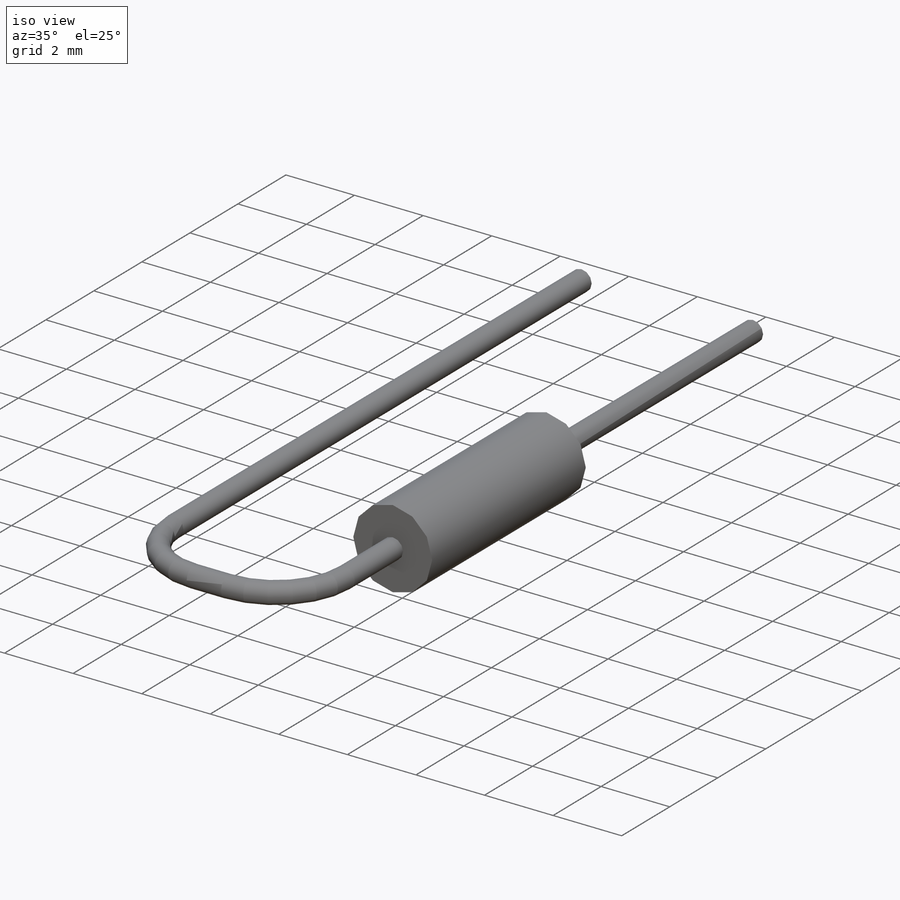
[diagram: iso view]
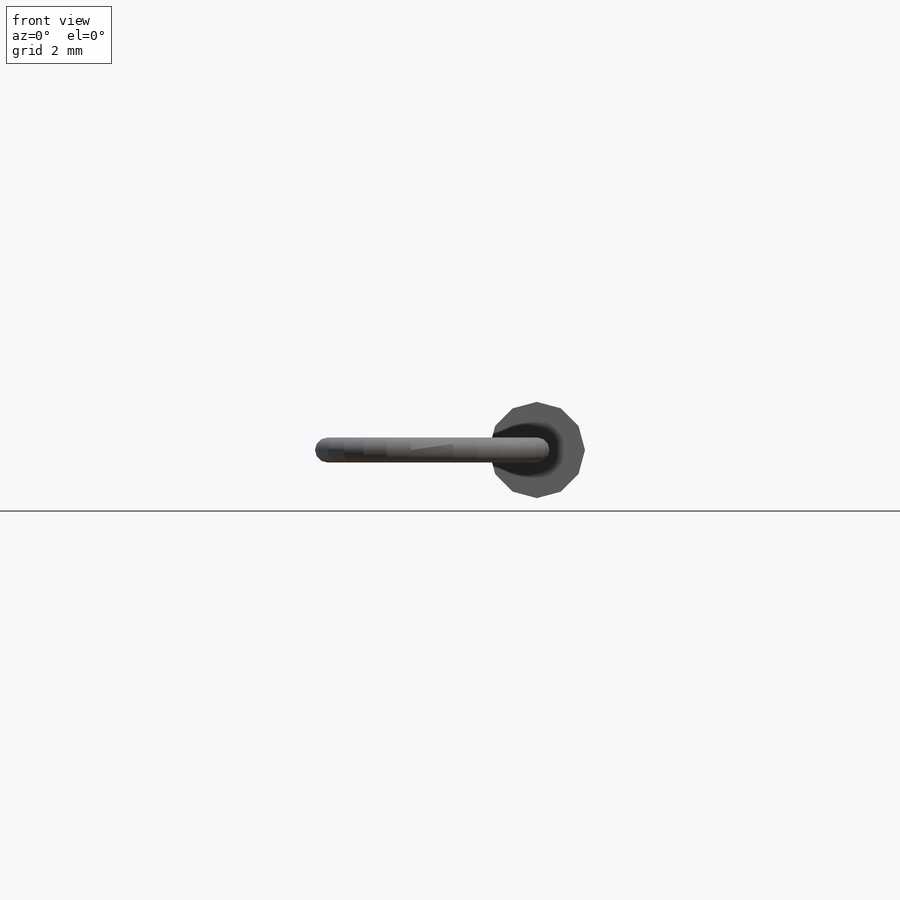
[diagram: front view]
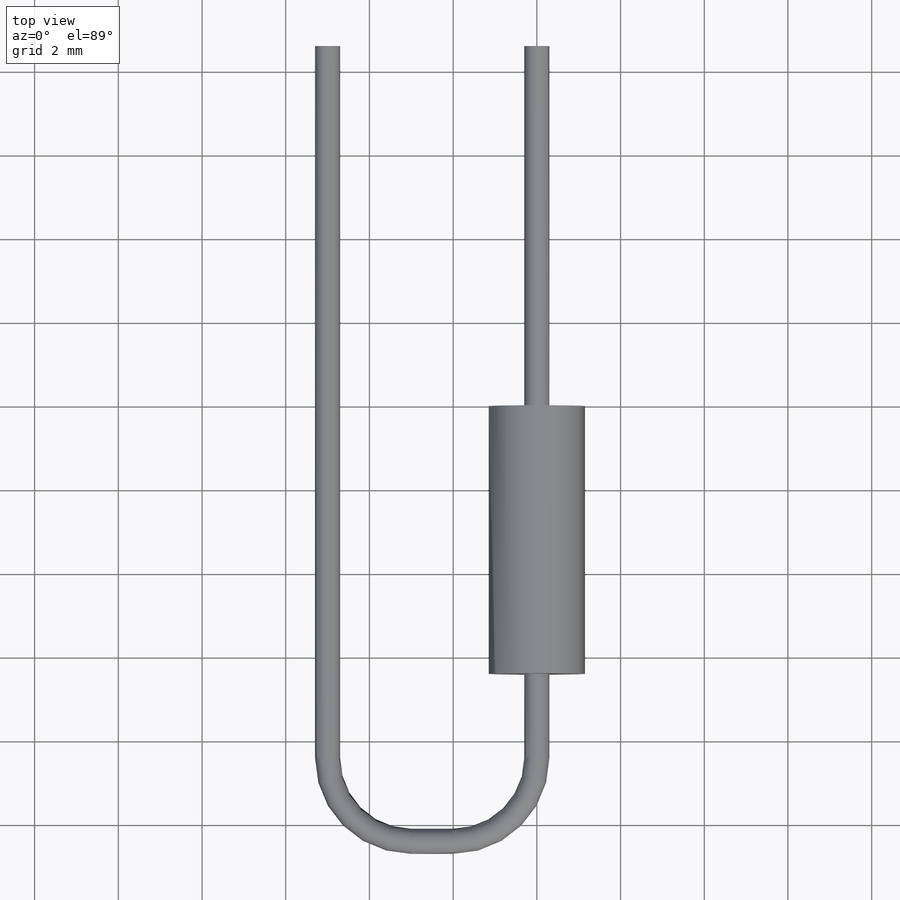
[diagram: top view]
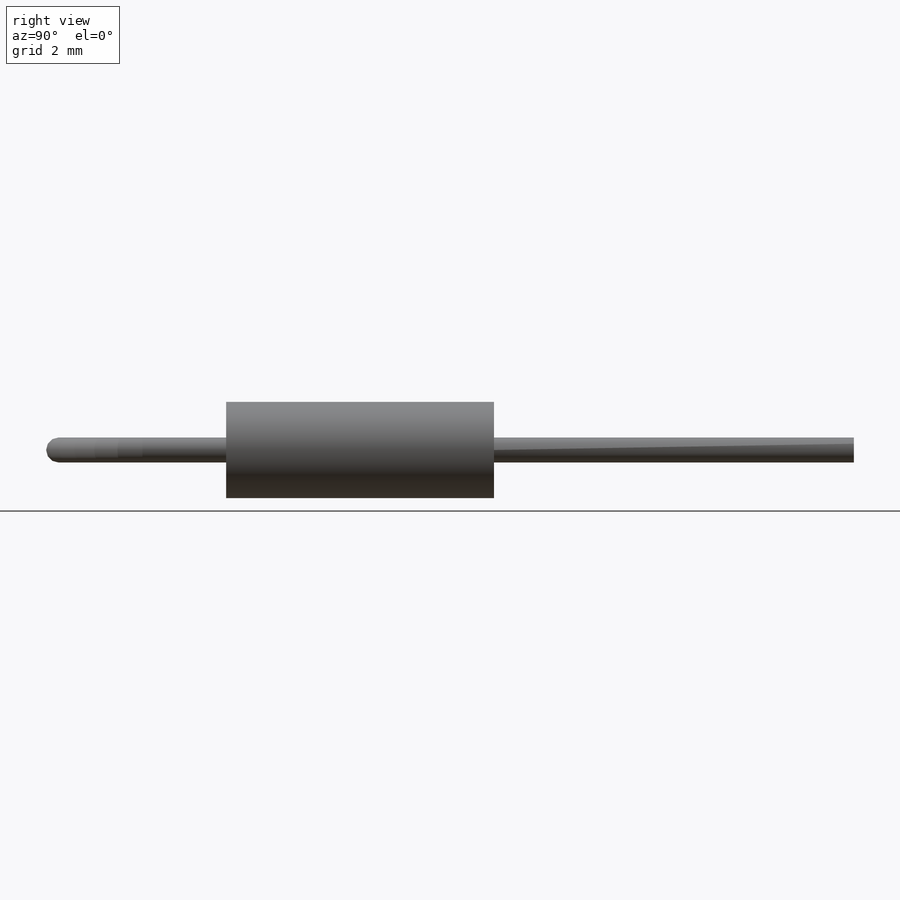
[diagram: right view]
SOLIDWORKS PART (.sldprt)
format: sldprt  version: not decoded by parser v0  size: 184,832 bytes
history: native  units: mm
features: sketch x5, extrude x2, material x1, sweep x1, plane x1 (+12 scaffold rows collapsed)
feature tree (22):
  scaffold x12  (default folders/planes/origin — collapsed)
  material  "Material <not specified>"
  sketch  "Sketch2"  dims[D1=2.3mm]
  extrude  "Resistor Body"  Depth=6.4mm
  sketch  "Lead1 Path"  dims[c1.D4=2.0mm c1.D1=19.0mm c1.D2=4.0mm c1.D3=5.0mm c2.D1=1.0mm c3.D1=90.0deg c4.D1=19.0mm c4.D2=4.0mm]
  sketch  "Lead1 Profile"  dims[D1=0.6mm]
  sweep  "Lead1"
  sketch  "Sketch6"
  extrude  "Lead2"  [1 undecoded]
  plane  "Mounting Plane"  Offset=5.5mm
  sketch  "Component_Outline"  dims[D1=1.15mm]
decode coverage: 5 of 8 modeling features carry decoded parameters
note: 1 parameter value undecoded
note: suppression state not decoded; provenance and decode notes live in map.json
